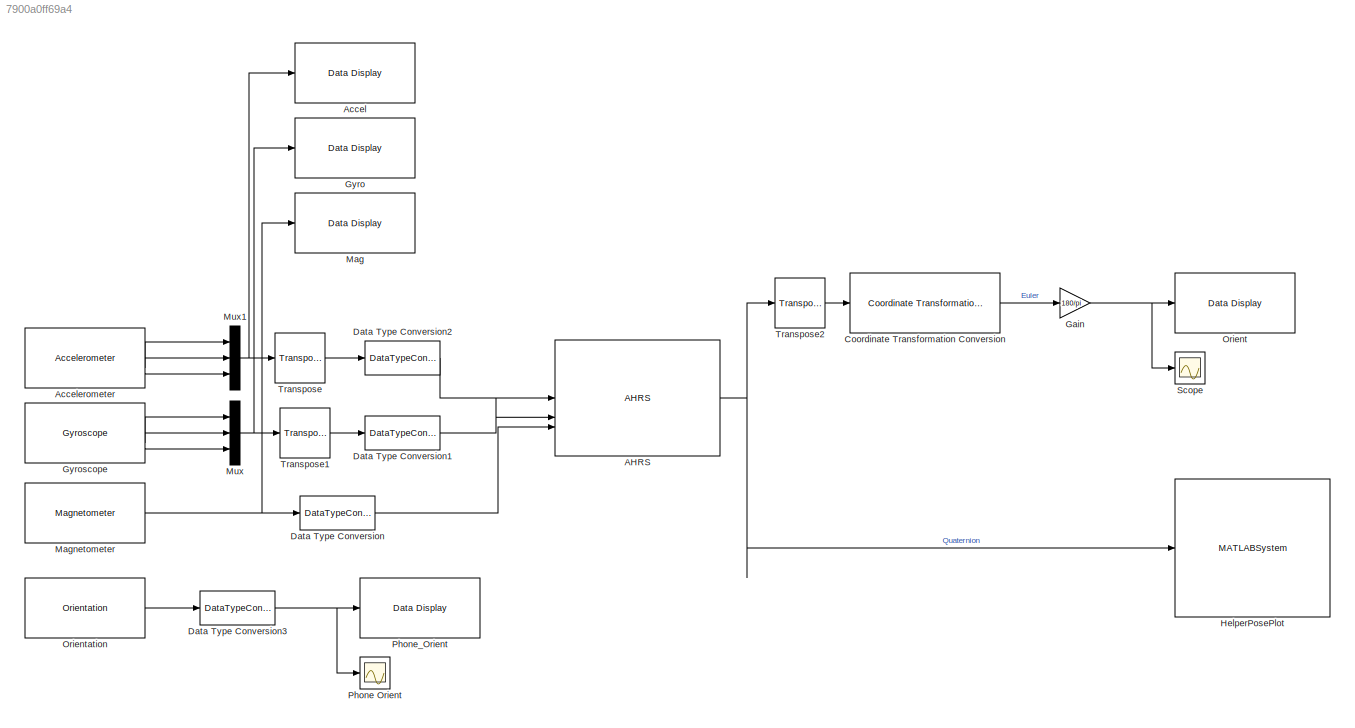
MODEL slx_7900a0ff69a4
KIND model
CONFIG AbsTol = auto
CONFIG EnableMultiTasking = off
CONFIG FixedStep = 0.1
CONFIG MaxStep = auto
CONFIG MinStep = auto
CONFIG RelTol = 1e-3
CONFIG SampleTimeConstraint = Unconstrained
CONFIG SolverName = FixedStepAuto
CONFIG StartTime = 0.0
CONFIG StopTime = inf
WORKSPACE source: mxarray member
WORKSPACE SampleRate = 100
BLOCK [Reference] AHRS  REF=mspfiltlib/AHRS
  SourceBlock = mspfiltlib/AHRS
  SourceType = fusion.simulink.ahrsfilter
BLOCK [Reference] Accel  REF=androiduilib/Data Display
  SourceBlock = androiduilib/Data Display
  SourceType = codertarget.internal.androidDataDisplay
BLOCK [Reference] Accelerometer  REF=androidsensorlib/Accelerometer
  SourceBlock = androidsensorlib/Accelerometer
  SourceType = codertarget.internal.androidAccelerometer
BLOCK [Reference] Coordinate Transformation Conversion  REF=robotcorelib/Coordinate Transformation Conversion
  LibrarySourceBlock = navlib/Utilities/Coordinate Transformation Conversion
  SourceBlock = robotcorelib/Coordinate Transformation Conversion
  SourceType = robotics.slcore.internal.block.CoordinateTransformationConversion
BLOCK [DataTypeConversion] Data Type Conversion
  OutDataTypeStr = double
  RndMeth = Floor
  SaturateOnIntegerOverflow = off
BLOCK [DataTypeConversion] Data Type Conversion1
  OutDataTypeStr = double
  RndMeth = Floor
  SaturateOnIntegerOverflow = off
BLOCK [DataTypeConversion] Data Type Conversion2
  OutDataTypeStr = double
  RndMeth = Floor
  SaturateOnIntegerOverflow = off
BLOCK [DataTypeConversion] Data Type Conversion3
  OutDataTypeStr = double
  RndMeth = Floor
  SaturateOnIntegerOverflow = off
BLOCK [Gain] Gain
  Gain = 180/pi
BLOCK [Reference] Gyro  REF=androiduilib/Data Display
  SourceBlock = androiduilib/Data Display
  SourceType = codertarget.internal.androidDataDisplay
BLOCK [Reference] Gyroscope  REF=androidsensorlib/Gyroscope
  SourceBlock = androidsensorlib/Gyroscope
  SourceType = codertarget.internal.androidGyroscope
BLOCK [MATLABSystem] HelperPosePlot
  MaskDisplay = disp('HelperPosePlot');\nport_label('input',1,'orient');
  MaskType = HelperPosePlot
  OrientationFormat = Quaternion
  System = HelperPosePlot
BLOCK [Reference] Mag  REF=androiduilib/Data Display
  SourceBlock = androiduilib/Data Display
  SourceType = codertarget.internal.androidDataDisplay
BLOCK [Reference] Magnetometer  REF=androidsensorlib/Magnetometer
  SourceBlock = androidsensorlib/Magnetometer
  SourceType = codertarget.internal.androidMagnetometer
BLOCK [Mux] Mux
  DisplayOption = bar
  Inputs = 3
BLOCK [Mux] Mux1
  DisplayOption = bar
  Inputs = 3
BLOCK [Reference] Orient  REF=androiduilib/Data Display
  SourceBlock = androiduilib/Data Display
  SourceType = codertarget.internal.androidDataDisplay
BLOCK [Reference] Orientation  REF=androidsensorlib/Orientation
  SourceBlock = androidsensorlib/Orientation
  SourceType = codertarget.internal.androidOrientation
BLOCK [Scope] Phone Orient
  Floating = off
  NumInputPorts = 1
  ScopeSpecificationString = Simulink.scopes.TimeScopeBlockCfg('CurrentConfiguration', extmgr.ConfigurationSet(extmgr.Configuration('Core','General UI',true),extmgr.Configuration('Core','Source UI',true),extmgr.Configuration('Sources','WiredSimulink',true,'DataLoggingVariableName','ScopeData1'),extmgr.Configuration('Visuals','Time Domain',true,'SerializedDisplays',{struct('MinYLimReal','-180','MaxYLimReal','180','YLabelReal',...<+1413ch>
BLOCK [Reference] Phone_Orient  REF=androiduilib/Data Display
  SourceBlock = androiduilib/Data Display
  SourceType = codertarget.internal.androidDataDisplay
BLOCK [Scope] Scope
  Floating = off
  NumInputPorts = 1
  ScopeSpecificationString = Simulink.scopes.TimeScopeBlockCfg('CurrentConfiguration', extmgr.ConfigurationSet(extmgr.Configuration('Core','General UI',true),extmgr.Configuration('Core','Source UI',true),extmgr.Configuration('Sources','WiredSimulink',true),extmgr.Configuration('Visuals','Time Domain',true,'SerializedDisplays',{struct('MinYLimReal','-180','MaxYLimReal','180','YLabelReal','','MinYLimMag','0','MaxYLimMag','10','...<+1372ch>
BLOCK [Reference] Transpose  REF=matrix_library/Transpose
  LibrarySourceBlock = simulink/Matrix\nOperations/Transpose
  SourceBlock = matrix_library/Transpose
  SourceType = Transpose
BLOCK [Reference] Transpose1  REF=matrix_library/Transpose
  LibrarySourceBlock = simulink/Matrix\nOperations/Transpose
  SourceBlock = matrix_library/Transpose
  SourceType = Transpose
BLOCK [Reference] Transpose2  REF=matrix_library/Transpose
  LibrarySourceBlock = simulink/Matrix\nOperations/Transpose
  SourceBlock = matrix_library/Transpose
  SourceType = Transpose
NET AHRS:1 -> HelperPosePlot:1, Transpose2:1
LINE Accelerometer:1 -> Mux1:1
LINE Accelerometer:2 -> Mux1:2
LINE Accelerometer:3 -> Mux1:3
LINE Coordinate Transformation Conversion:1 -> Gain:1
LINE Data Type Conversion1:1 -> AHRS:2
LINE Data Type Conversion2:1 -> AHRS:1
NET Data Type Conversion3:1 -> Phone Orient:1, Phone_Orient:1
LINE Data Type Conversion:1 -> AHRS:3
NET Gain:1 -> Orient:1, Scope:1
LINE Gyroscope:1 -> Mux:1
LINE Gyroscope:2 -> Mux:2
LINE Gyroscope:3 -> Mux:3
NET Magnetometer:1 -> Data Type Conversion:1, Mag:1
NET Mux1:1 -> Accel:1, Transpose:1
NET Mux:1 -> Gyro:1, Transpose1:1
LINE Orientation:1 -> Data Type Conversion3:1
LINE Transpose1:1 -> Data Type Conversion1:1
LINE Transpose2:1 -> Coordinate Transformation Conversion:1
LINE Transpose:1 -> Data Type Conversion2:1
note: NET lines group one-source signal fan-out (src -> all destinations, sorted); 1:1 wires keep LINE
